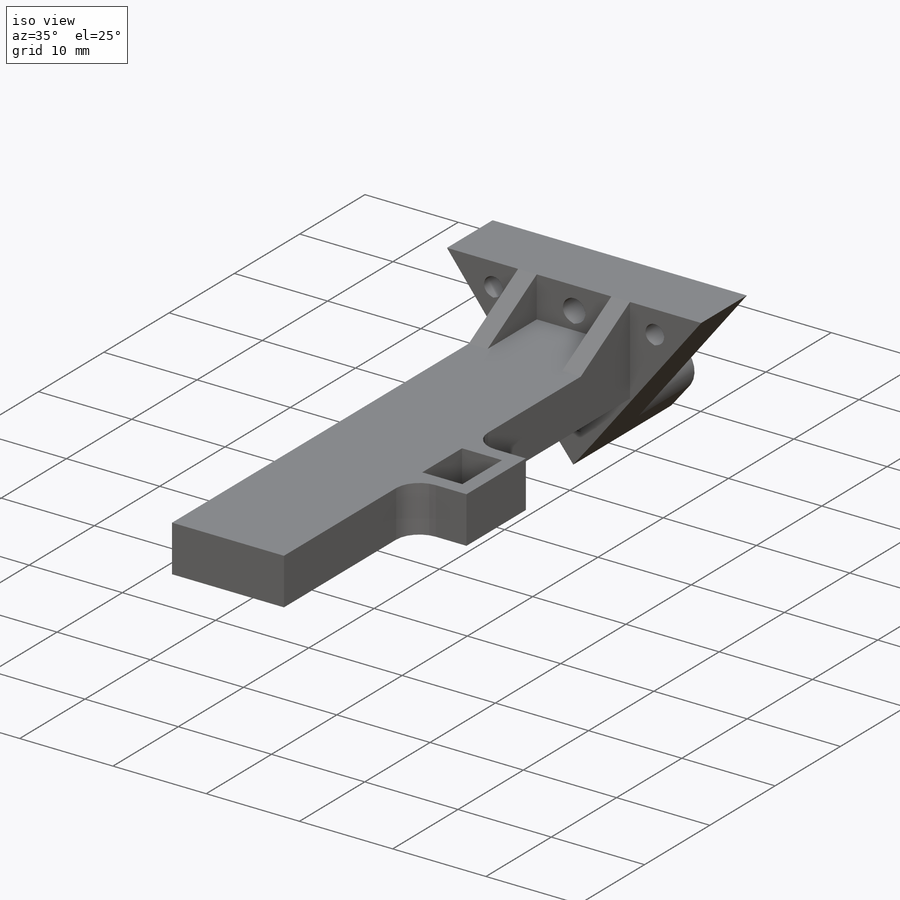
[diagram: iso view]
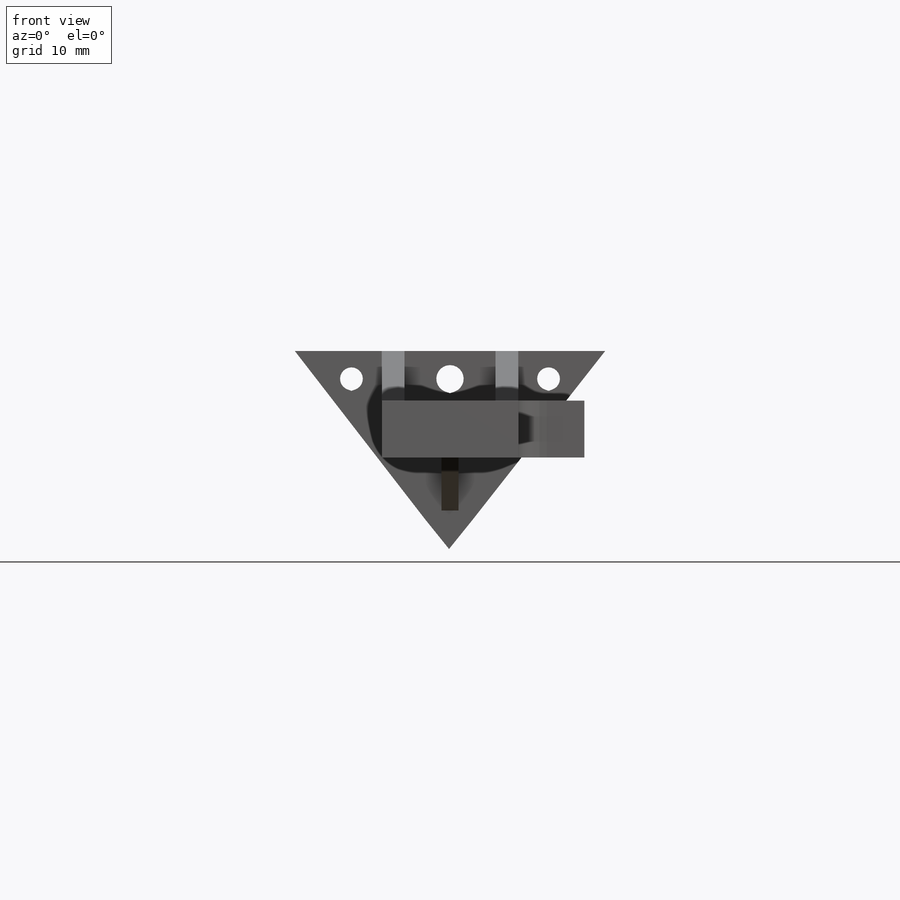
[diagram: front view]
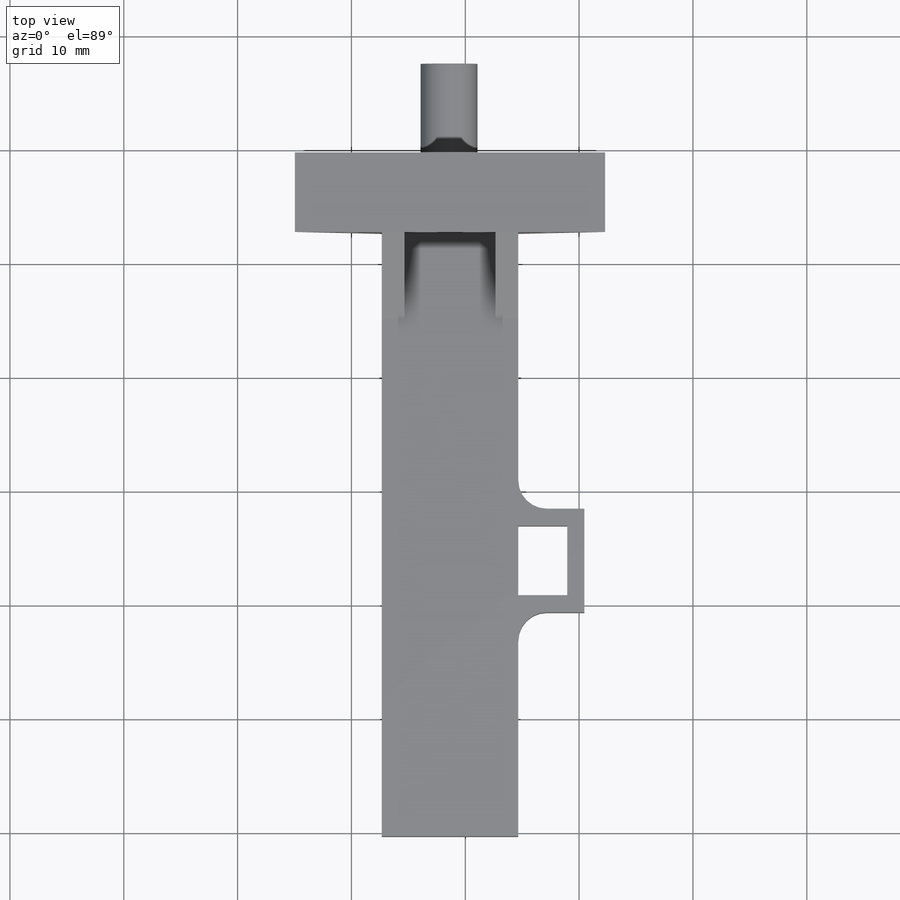
[diagram: top view]
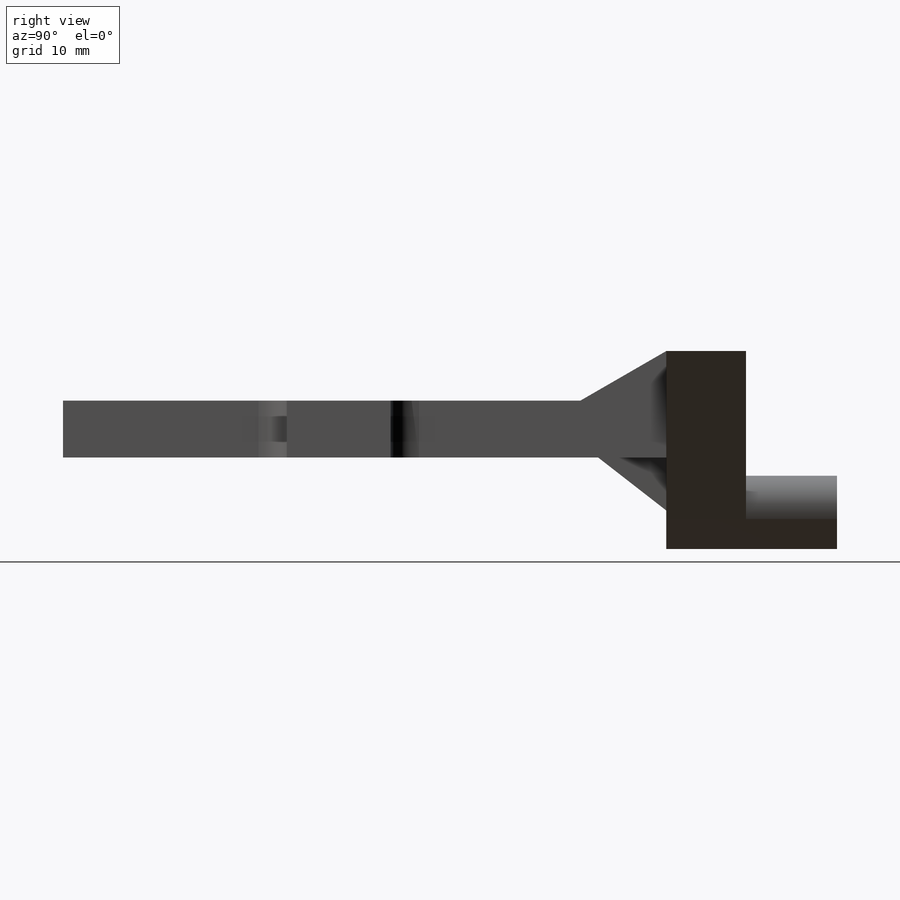
[diagram: right view]
SOLIDWORKS PART (.sldprt)
format: sldprt  version: not decoded by parser v0  size: 492,544 bytes
history: native  units: mm
features: sketch x9, extrude x8, fillet x2, material x1, cut_extrude x1, plane x1 (+13 scaffold rows collapsed)
feature tree (35):
  scaffold x13  (default folders/planes/origin — collapsed)
  material  "Material <not specified>"
  sketch  "Sketch1"  dims[c1.D1=14.0mm c1.D2=60.0mm c1.D3=5.0mm c1.D4=5.0mm c1.D5=0.5mm c2.D1=6.0mm c2.D3=6.0mm c3.D1=12.0mm c3.D4=~17.372574mm c3.D3=7.0mm c4.D4=~17.372574mm]
  extrude  "Boss-Extrude1"  Depth=1mm
  sketch  "Sketch4"  dims[D1=2.0mm D2=2.0mm D3=0.5mm D4=0.5mm D5=0.5mm D6=0.5mm]
  extrude  "Boss-Extrude5"  Depth=4mm
  sketch  "Sketch3"  dims[c1.D1=5.0mm c1.D2=2.0mm c1.D3=0.4mm c1.D4=50.0mm c1.D5=2.0mm c2.D4=2.0mm c2.D5=2.0mm]
  cut_extrude  "Cut-Extrude1"  Depth=3mm
  sketch  "Sketch5"  dims[c1.D1=2.4mm c1.D2=2.0mm c1.D5=5.0mm c2.D2=2.0mm c2.D1=8.25mm c2.D3=8.65mm c2.D4=12.0mm c3.D4=12.0mm c3.D6=~10.411185mm c3.D3=8.7mm c4.D4=~5.526872mm c4.D3=~0.306718mm c5.D3=~160.536438deg c6.D3=~0.562126mm c7.D3=~27.932966deg c8.D3=~0.841102mm c9.D3=~20.515407deg c10.D3=~0.841102mm]
  extrude  "Boss-Extrude6"  Depth=7mm
  extrude  "Boss-Extrude11"  [1 undecoded]
  sketch  "Sketch5<3>"  dims[D1=8.0mm]
  sketch  "Sketch11"  dims[c1.D1=~10.174941mm c2.D1=60.0deg]
  extrude  "Boss-Extrude12"  Depth=2mm
  plane  "Plane1"  Offset=6mm
  sketch  "Sketch12"
  extrude  "Boss-Extrude13"  Depth=1.5mm
  sketch  "Sketch14"
  extrude  "Boss-Extrude15"  Depth=2mm
  sketch  "Sketch15"  dims[D1=6.1mm D2=4.3mm D3=1.5mm D4=1.5mm D5=1.5mm]
  extrude  "Boss-Extrude16"  Depth=5mm
  fillet  "Fillet1"  Radius=2.5mm
  fillet  "Fillet2"  Radius=2.5mm
decode coverage: 17 of 20 modeling features carry decoded parameters
note: ~ marks probable driven/reference dimensions
note: 1 parameter value undecoded
note: suppression state not decoded; provenance and decode notes live in map.json
